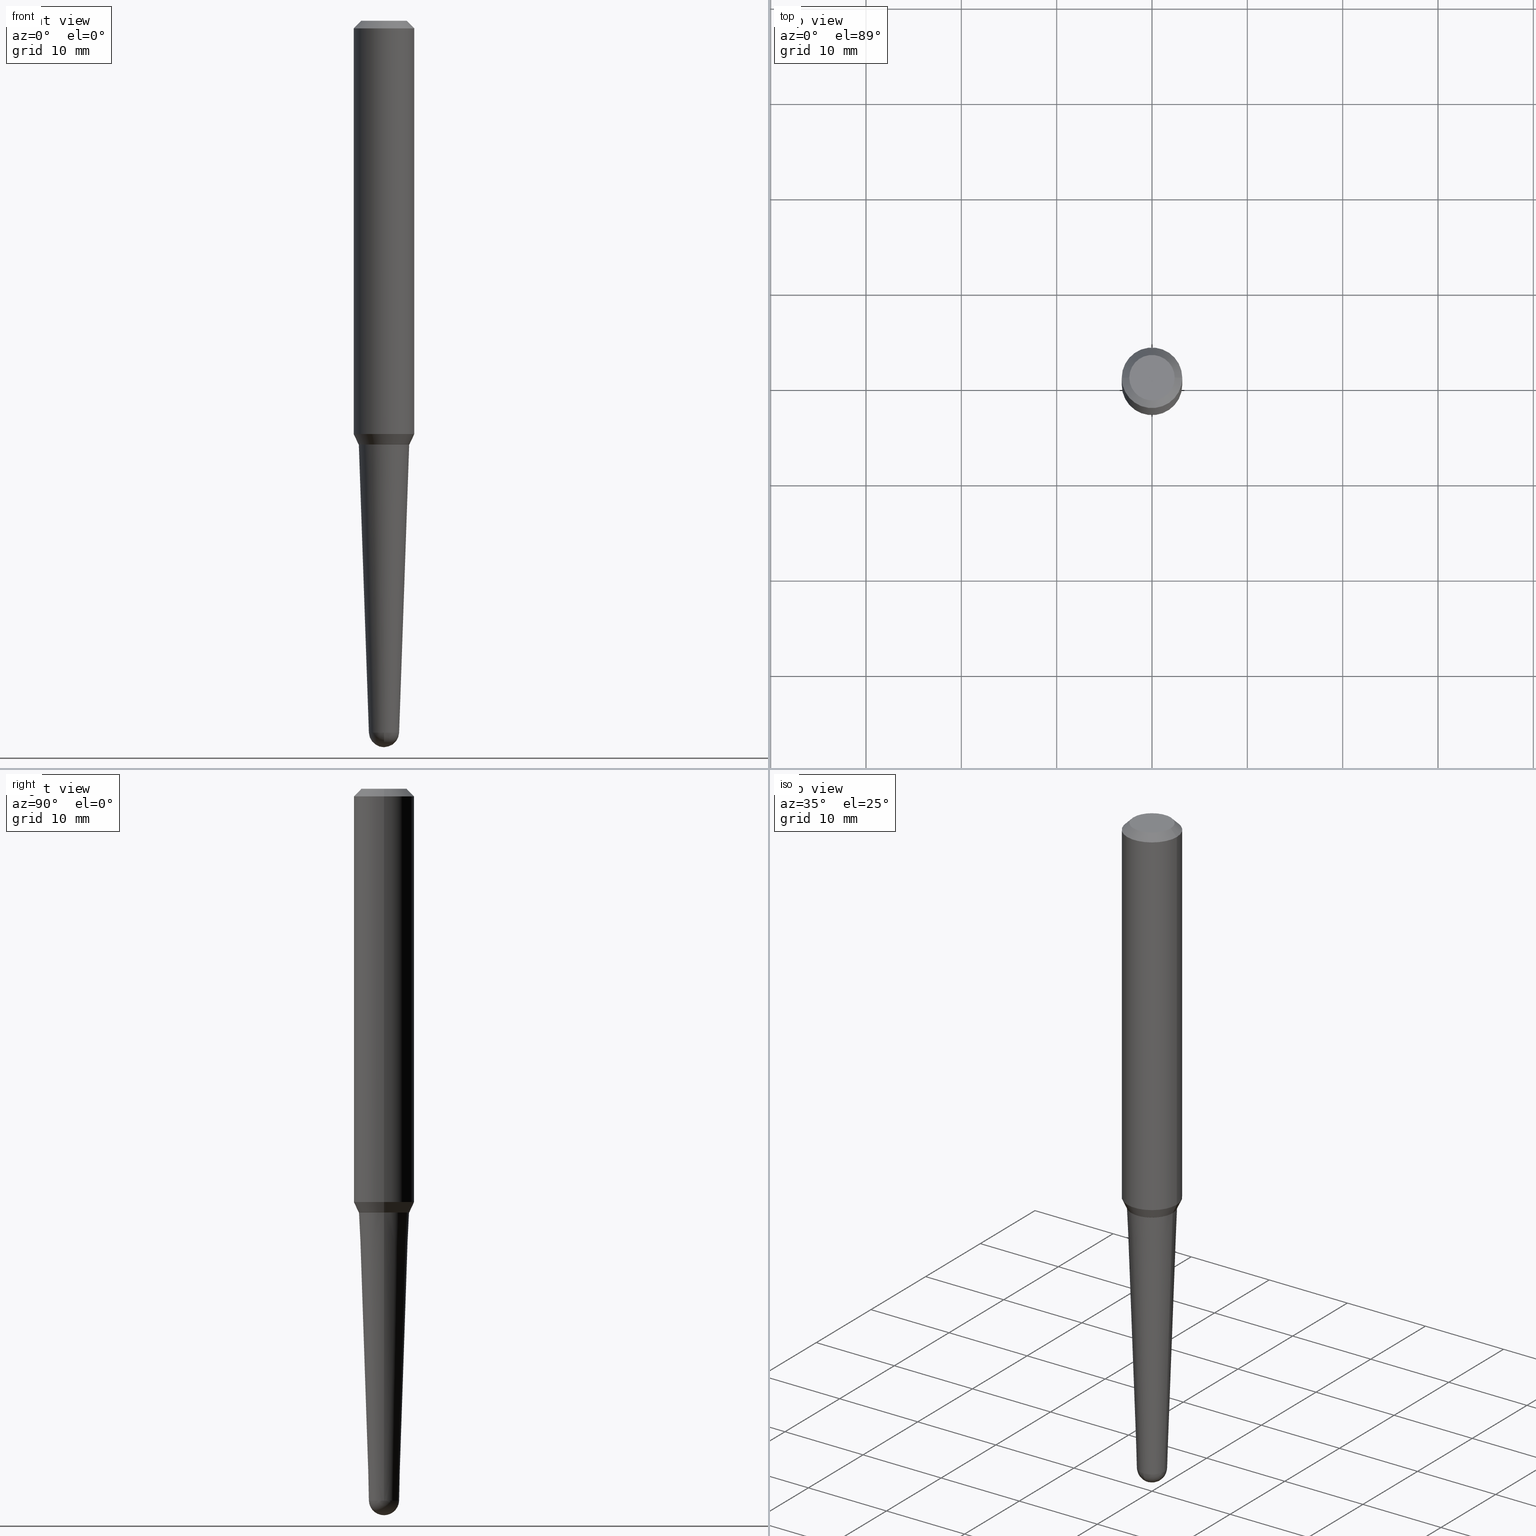
[diagram: canonical four-view strip — front | top / right | iso, engineering-drawing reading convention]
A machine part, canonical four-view strip (front | top / right | iso — engineering-drawing reading convention). The complete STEP part file that produces these views, byte-faithful:
ISO-10303-21;
HEADER;
FILE_DESCRIPTION (( 'STEP AP203' ),
    '1' );
FILE_NAME ('32472.STEP',
    '2024-03-04T15:25:46',
    ( '' ),
    ( '' ),
    'SwSTEP 2.0',
    'SolidWorks 2023',
    '' );
FILE_SCHEMA (( 'CONFIG_CONTROL_DESIGN' ));
ENDSEC;

DATA;
#1 = ORIENTED_EDGE ( 'NONE', *, *, #341, .F. ) ;
#2 = AXIS2_PLACEMENT_3D ( 'NONE', #399, #81, #372 ) ;
#3 = CIRCLE ( 'NONE', #62, 0.06246192668869397779 ) ;
#4 = ORIENTED_EDGE ( 'NONE', *, *, #273, .F. ) ;
#5 = CALENDAR_DATE ( 2024, 4, 3 ) ;
#6 = FACE_OUTER_BOUND ( 'NONE', #197, .T. ) ;
#7 = SHAPE_DEFINITION_REPRESENTATION ( #462, #30 ) ;
#8 = CALENDAR_DATE ( 2024, 4, 3 ) ;
#9 = VECTOR ( 'NONE', #171, 39.37007874015748854 ) ;
#10 = CARTESIAN_POINT ( 'NONE',  ( -0.1250000000000000278, -2.145698591350394576E-15, -0.03125000000000004857 ) ) ;
#11 = EDGE_CURVE ( 'NONE', #127, #279, #433, .T. ) ;
#12 = ORIENTED_EDGE ( 'NONE', *, *, #448, .F. ) ;
#13 = DIRECTION ( 'NONE',  ( 1.000000000000000000, -6.982962677686267499E-15, 4.852736867747361723E-29 ) ) ;
#14 = PERSON_AND_ORGANIZATION_ROLE ( 'creator' ) ;
#15 = VERTEX_POINT ( 'NONE', #104 ) ;
#16 = AXIS2_PLACEMENT_3D ( 'NONE', #42, #289, #13 ) ;
#17 = AXIS2_PLACEMENT_3D ( 'NONE', #268, #420, #384 ) ;
#18 = DIRECTION ( 'NONE',  ( -0.7071067811866441621, 7.493145998870704414E-15, 0.7071067811864508723 ) ) ;
#19 = ORIENTED_EDGE ( 'NONE', *, *, #313, .T. ) ;
#20 = EDGE_CURVE ( 'NONE', #66, #447, #323, .T. ) ;
#21 = DIRECTION ( 'NONE',  ( -2.445468806185136597E-29, 3.491481338843145583E-15, 1.000000000000000000 ) ) ;
#22 = VERTEX_POINT ( 'NONE', #391 ) ;
#23 = CARTESIAN_POINT ( 'NONE',  ( -0.1045065102901272247, -5.367528925712624666E-15, -1.750000000000000222 ) ) ;
#24 = CARTESIAN_POINT ( 'NONE',  ( 0.1250000000000000278, -9.666710415602901515E-16, -0.03125000000000004857 ) ) ;
#25 = AXIS2_PLACEMENT_3D ( 'NONE', #196, #373, #54 ) ;
#26 = EDGE_LOOP ( 'NONE', ( #166, #400, #410, #160 ) ) ;
#27 = DIRECTION ( 'NONE',  ( 0.4226182617406871178, 2.132291770428470846E-16, 0.9063077870366557098 ) ) ;
#28 = ORIENTED_EDGE ( 'NONE', *, *, #426, .T. ) ;
#29 = ADVANCED_FACE ( 'NONE', ( #148 ), #349, .T. ) ;
#30 = ADVANCED_BREP_SHAPE_REPRESENTATION ( '32472', ( #302, #141, #38 ), #146 ) ;
#31 = ORIENTED_EDGE ( 'NONE', *, *, #263, .T. ) ;
#32 = AXIS2_PLACEMENT_3D ( 'NONE', #222, #411, #218 ) ;
#33 = CC_DESIGN_SECURITY_CLASSIFICATION ( #232, ( #424 ) ) ;
#34 = ADVANCED_FACE ( 'NONE', ( #315 ), #199, .T. ) ;
#35 = CARTESIAN_POINT ( 'NONE',  ( 7.520286344533223702E-29, -9.774021755687468506E-15, -2.937500000000000000 ) ) ;
#36 = DIRECTION ( 'NONE',  ( 1.000000000000000000, -6.982962677686269077E-15, 0.000000000000000000 ) ) ;
#37 = ORIENTED_EDGE ( 'NONE', *, *, #140, .T. ) ;
#38 = AXIS2_PLACEMENT_3D ( 'NONE', #223, #195, #328 ) ;
#39 = PERSON_AND_ORGANIZATION ( #284, #162 ) ;
#40 = FACE_OUTER_BOUND ( 'NONE', #135, .T. ) ;
#41 = DATE_AND_TIME ( #367, #75 ) ;
#42 = CARTESIAN_POINT ( 'NONE',  ( -1.450455682483482035E-44, 2.070866303999251778E-30, 5.931196827434296760E-16 ) ) ;
#43 = ORIENTED_EDGE ( 'NONE', *, *, #103, .T. ) ;
#44 = DATE_AND_TIME ( #185, #338 ) ;
#45 = CARTESIAN_POINT ( 'NONE',  ( 4.278347676420897364E-29, -6.108346602306083956E-15, -1.749500000000000277 ) ) ;
#46 = CLOSED_SHELL ( 'NONE', ( #434, #187, #117, #189, #278 ) ) ;
#47 = APPROVAL_ROLE ( '' ) ;
#48 = FACE_OUTER_BOUND ( 'NONE', #164, .T. ) ;
#49 = ORIENTED_EDGE ( 'NONE', *, *, #359, .F. ) ;
#50 =( NAMED_UNIT ( * ) PLANE_ANGLE_UNIT ( ) SI_UNIT ( $, .RADIAN. ) );
#51 = CARTESIAN_POINT ( 'NONE',  ( 0.1050065102901272529, -6.841603144576121377E-15, -1.749500000000000277 ) ) ;
#52 = CONICAL_SURFACE ( 'NONE', #265, 0.1050065102901272529, 0.4363323129985687832 ) ;
#53 = CONICAL_SURFACE ( 'NONE', #332, 0.1050065102901272529, 0.4363323129985687832 ) ;
#54 = DIRECTION ( 'NONE',  ( 1.000000000000000000, -6.982962677686267499E-15, 0.000000000000000000 ) ) ;
#55 = ORIENTED_EDGE ( 'NONE', *, *, #20, .T. ) ;
#56 = CARTESIAN_POINT ( 'NONE',  ( -0.1050065102901272529, -5.362230471364402264E-15, -1.749500000000000277 ) ) ;
#57 = ADVANCED_FACE ( 'NONE', ( #353 ), #52, .T. ) ;
#58 = EDGE_CURVE ( 'NONE', #22, #421, #83, .T. ) ;
#59 = CARTESIAN_POINT ( 'NONE',  ( 0.1250000000000001943, -6.831515564972979377E-15, -1.706623822952039626 ) ) ;
#60 = CARTESIAN_POINT ( 'NONE',  ( 4.279570410823989044E-29, -6.110092342975505460E-15, -1.750000000000000222 ) ) ;
#61 = AXIS2_PLACEMENT_3D ( 'NONE', #188, #287, #368 ) ;
#62 = AXIS2_PLACEMENT_3D ( 'NONE', #238, #245, #319 ) ;
#63 = DIRECTION ( 'NONE',  ( 1.000000000000000000, -6.982962677686267499E-15, 0.000000000000000000 ) ) ;
#64 = ORIENTED_EDGE ( 'NONE', *, *, #299, .F. ) ;
#65 = CC_DESIGN_PERSON_AND_ORGANIZATION_ASSIGNMENT ( #39, #186, ( #424 ) ) ;
#66 = VERTEX_POINT ( 'NONE', #456 ) ;
#67 = CARTESIAN_POINT ( 'NONE',  ( 4.279570410823989044E-29, -6.110092342975505460E-15, -1.750000000000000222 ) ) ;
#68 = AXIS2_PLACEMENT_3D ( 'NONE', #392, #275, #105 ) ;
#69 = DIRECTION ( 'NONE',  ( -2.445468806185136597E-29, 3.491481338843145583E-15, 1.000000000000000000 ) ) ;
#70 = DIRECTION ( 'NONE',  ( 1.000000000000000000, -6.982962677686267499E-15, 0.000000000000000000 ) ) ;
#71 = EDGE_CURVE ( 'NONE', #15, #447, #182, .T. ) ;
#72 = FACE_OUTER_BOUND ( 'NONE', #230, .T. ) ;
#73 = DIRECTION ( 'NONE',  ( 1.000000000000000000, -6.982962677686261977E-15, 0.000000000000000000 ) ) ;
#74 = CIRCLE ( 'NONE', #128, 0.1045065102901272247 ) ;
#75 = LOCAL_TIME ( 10, 25, 46.00000000000000000, #76 ) ;
#76 = COORDINATED_UNIVERSAL_TIME_OFFSET ( 5, 0, .BEHIND. ) ;
#77 = DIRECTION ( 'NONE',  ( -2.445468806185136597E-29, 3.491481338843145583E-15, 1.000000000000000000 ) ) ;
#78 =( CONVERSION_BASED_UNIT ( 'INCH', #86 ) LENGTH_UNIT ( ) NAMED_UNIT ( #88 ) );
#79 = ADVANCED_FACE ( 'NONE', ( #72 ), #210, .F. ) ;
#80 = CARTESIAN_POINT ( 'NONE',  ( 4.279570410823989044E-29, -6.110092342975505460E-15, -1.750000000000000222 ) ) ;
#81 = DIRECTION ( 'NONE',  ( -2.445468806185136597E-29, 3.491481338843145583E-15, 1.000000000000000000 ) ) ;
#82 = VECTOR ( 'NONE', #233, 39.37007874015748143 ) ;
#83 = CIRCLE ( 'NONE', #405, 0.1040065102901272243 ) ;
#84 = DIRECTION ( 'NONE',  ( -1.000000000000000000, 6.982962677686265922E-15, -4.883557194083112340E-29 ) ) ;
#85 = ORIENTED_EDGE ( 'NONE', *, *, #11, .F. ) ;
#86 = LENGTH_MEASURE_WITH_UNIT ( LENGTH_MEASURE( 0.02539999999999999897 ), #314 );
#87 = DIRECTION ( 'NONE',  ( -2.445468806185136597E-29, 3.491481338843145583E-15, 1.000000000000000000 ) ) ;
#88 = DIMENSIONAL_EXPONENTS ( 1.000000000000000000, 0.000000000000000000, 0.000000000000000000, 0.000000000000000000, 0.000000000000000000, 0.000000000000000000, 0.000000000000000000 ) ;
#89 = CARTESIAN_POINT ( 'NONE',  ( -0.1250000000000000278, 7.637615428719351256E-16, -0.03125000000000004857 ) ) ;
#90 = ORIENTED_EDGE ( 'NONE', *, *, #461, .F. ) ;
#91 = AXIS2_PLACEMENT_3D ( 'NONE', #45, #77, #191 ) ;
#92 = DIRECTION ( 'NONE',  ( -1.000000000000000000, 6.982962677686265922E-15, -4.876176775795935793E-29 ) ) ;
#93 = EDGE_CURVE ( 'NONE', #15, #357, #114, .T. ) ;
#94 = ORIENTED_EDGE ( 'NONE', *, *, #93, .T. ) ;
#95 = DIRECTION ( 'NONE',  ( 2.438088387897960049E-29, -3.491481338843145188E-15, -1.000000000000000000 ) ) ;
#96 = ORIENTED_EDGE ( 'NONE', *, *, #252, .F. ) ;
#97 = DIRECTION ( 'NONE',  ( 1.000000000000000000, -6.982962677686267499E-15, 4.852736867747361723E-29 ) ) ;
#98 = ORIENTED_EDGE ( 'NONE', *, *, #261, .T. ) ;
#99 = FACE_OUTER_BOUND ( 'NONE', #100, .T. ) ;
#100 = EDGE_LOOP ( 'NONE', ( #336, #428, #387, #294, #55 ) ) ;
#101 = CC_DESIGN_DATE_AND_TIME_ASSIGNMENT ( #156, #158, ( #444 ) ) ;
#102 = ORIENTED_EDGE ( 'NONE', *, *, #448, .T. ) ;
#103 = EDGE_CURVE ( 'NONE', #66, #22, #322, .T. ) ;
#104 = CARTESIAN_POINT ( 'NONE',  ( 7.675800539573479979E-29, -9.988412318117830445E-15, -2.999999999999999556 ) ) ;
#105 = DIRECTION ( 'NONE',  ( 1.000000000000000000, -6.982962677686261977E-15, 0.000000000000000000 ) ) ;
#106 = EDGE_LOOP ( 'NONE', ( #283, #320, #412, #43, #312 ) ) ;
#107 = AXIS2_PLACEMENT_3D ( 'NONE', #212, #181, #425 ) ;
#108 = APPROVAL_PERSON_ORGANIZATION ( #394, #345, #220 ) ;
#109 = CARTESIAN_POINT ( 'NONE',  ( 7.188898720077434965E-29, -1.026384211669372732E-14, -2.939681218543906294 ) ) ;
#110 = DIRECTION ( 'NONE',  ( 2.445468806185136597E-29, -3.491481338843145583E-15, -1.000000000000000000 ) ) ;
#111 = EDGE_CURVE ( 'NONE', #348, #421, #180, .T. ) ;
#112 = SPHERICAL_SURFACE ( 'NONE', #298, 0.06249999999999984041 ) ;
#113 = VERTEX_POINT ( 'NONE', #10 ) ;
#114 = CIRCLE ( 'NONE', #107, 0.06249999999999984041 ) ;
#115 = CONICAL_SURFACE ( 'NONE', #68, 0.06246192668869397779, 0.03490658503988653544 ) ;
#116 = FACE_OUTER_BOUND ( 'NONE', #423, .T. ) ;
#117 = ADVANCED_FACE ( 'NONE', ( #366 ), #112, .T. ) ;
#118 = ORIENTED_EDGE ( 'NONE', *, *, #93, .F. ) ;
#119 = AXIS2_PLACEMENT_3D ( 'NONE', #396, #137, #276 ) ;
#120 = CIRCLE ( 'NONE', #219, 0.1250000000000001943 ) ;
#121 = APPROVAL_DATE_TIME ( #41, #228 ) ;
#122 = ORIENTED_EDGE ( 'NONE', *, *, #71, .F. ) ;
#123 = ORIENTED_EDGE ( 'NONE', *, *, #20, .F. ) ;
#124 = CARTESIAN_POINT ( 'NONE',  ( -0.09375000000000006939, 7.092071469525110684E-16, -2.985923209265061018E-16 ) ) ;
#125 = ORIENTED_EDGE ( 'NONE', *, *, #168, .T. ) ;
#126 = LINE ( 'NONE', #51, #429 ) ;
#127 = VERTEX_POINT ( 'NONE', #401 ) ;
#128 = AXIS2_PLACEMENT_3D ( 'NONE', #80, #150, #159 ) ;
#129 = CIRCLE ( 'NONE', #243, 0.1045065102901272247 ) ;
#130 = FACE_OUTER_BOUND ( 'NONE', #239, .T. ) ;
#131 = PRODUCT ( '32472', '32472', '', ( #286 ) ) ;
#132 = DIRECTION ( 'NONE',  ( -0.7071067811865497932, 2.468850131082280332E-15, -0.7071067811865451302 ) ) ;
#133 = ORIENTED_EDGE ( 'NONE', *, *, #157, .F. ) ;
#134 = CARTESIAN_POINT ( 'NONE',  ( -0.1045065102901272247, -5.364879698538513465E-15, -1.750000000000000222 ) ) ;
#135 = EDGE_LOOP ( 'NONE', ( #122, #94, #90, #376 ) ) ;
#136 = AXIS2_PLACEMENT_3D ( 'NONE', #324, #356, #280 ) ;
#137 = DIRECTION ( 'NONE',  ( 2.438088387897960049E-29, -3.491481338843145188E-15, -1.000000000000000000 ) ) ;
#138 = EDGE_LOOP ( 'NONE', ( #161, #326, #344, #96 ) ) ;
#139 = CARTESIAN_POINT ( 'NONE',  ( 4.361693028435970673E-16, 0.06246192668868363190, -2.939681218543906294 ) ) ;
#140 = EDGE_CURVE ( 'NONE', #152, #113, #225, .T. ) ;
#141 = MANIFOLD_SOLID_BREP ( 'Body-Move/Copy2[2]', #288 ) ;
#142 = DIRECTION ( 'NONE',  ( -0.03489949670250091368, 3.737330261384646804E-15, 0.9993908270190957621 ) ) ;
#143 = CARTESIAN_POINT ( 'NONE',  ( -0.1040065102901272243, -5.371081639391425565E-15, -1.750000000000000222 ) ) ;
#144 = AXIS2_PLACEMENT_3D ( 'NONE', #109, #240, #73 ) ;
#145 = DIRECTION ( 'NONE',  ( 0.7071067811866441621, -2.468850131083269169E-15, 0.7071067811864508723 ) ) ;
#146 =( GEOMETRIC_REPRESENTATION_CONTEXT ( 3 ) GLOBAL_UNCERTAINTY_ASSIGNED_CONTEXT ( ( #436 ) ) GLOBAL_UNIT_ASSIGNED_CONTEXT ( ( #78, #50, #404 ) ) REPRESENTATION_CONTEXT ( 'NONE', 'WORKASPACE' ) );
#147 = CIRCLE ( 'NONE', #325, 0.06246192668869397779 ) ;
#148 = FACE_OUTER_BOUND ( 'NONE', #403, .T. ) ;
#149 = APPROVAL_DATE_TIME ( #44, #345 ) ;
#150 = DIRECTION ( 'NONE',  ( -2.445468806185136597E-29, 3.491481338843145583E-15, 1.000000000000000000 ) ) ;
#151 = CC_DESIGN_PERSON_AND_ORGANIZATION_ASSIGNMENT ( #155, #258, ( #424 ) ) ;
#152 = VERTEX_POINT ( 'NONE', #442 ) ;
#153 = ADVANCED_FACE ( 'NONE', ( #6 ), #296, .T. ) ;
#154 = VECTOR ( 'NONE', #132, 39.37007874015748854 ) ;
#155 = PERSON_AND_ORGANIZATION ( #284, #162 ) ;
#156 = DATE_AND_TIME ( #8, #317 ) ;
#157 = EDGE_CURVE ( 'NONE', #127, #237, #74, .T. ) ;
#158 = DATE_TIME_ROLE ( 'creation_date' ) ;
#159 = DIRECTION ( 'NONE',  ( 1.000000000000000000, -6.982962677686265133E-15, 0.000000000000000000 ) ) ;
#160 = ORIENTED_EDGE ( 'NONE', *, *, #202, .F. ) ;
#161 = ORIENTED_EDGE ( 'NONE', *, *, #329, .F. ) ;
#162 = ORGANIZATION ( 'UNSPECIFIED', 'UNSPECIFIED', '' ) ;
#163 = CARTESIAN_POINT ( 'NONE',  ( 4.279570410823989044E-29, -6.110092342975505460E-15, -1.750000000000000222 ) ) ;
#164 = EDGE_LOOP ( 'NONE', ( #133, #1 ) ) ;
#165 = DIRECTION ( 'NONE',  ( 1.000000000000000000, -6.982962677686261977E-15, 0.000000000000000000 ) ) ;
#166 = ORIENTED_EDGE ( 'NONE', *, *, #313, .F. ) ;
#167 = DIRECTION ( 'NONE',  ( -2.445468806185136597E-29, 3.491481338843145583E-15, 1.000000000000000000 ) ) ;
#168 = EDGE_CURVE ( 'NONE', #260, #380, #437, .T. ) ;
#169 = CONICAL_SURFACE ( 'NONE', #2, 0.06246192668869397779, 0.03490658503988653544 ) ;
#170 = CIRCLE ( 'NONE', #257, 0.1050065102901272529 ) ;
#171 = DIRECTION ( 'NONE',  ( 0.7071067811865497932, -7.319954787623263934E-15, -0.7071067811865451302 ) ) ;
#172 = CARTESIAN_POINT ( 'NONE',  ( -0.1050065102901272529, -5.362230471364402264E-15, -1.749500000000000277 ) ) ;
#173 = EDGE_LOOP ( 'NONE', ( #334, #408, #12, #363 ) ) ;
#174 = ORIENTED_EDGE ( 'NONE', *, *, #58, .T. ) ;
#175 = DIRECTION ( 'NONE',  ( -2.445468806185136597E-29, 3.491481338843145583E-15, 1.000000000000000000 ) ) ;
#176 = VECTOR ( 'NONE', #142, 39.37007874015748143 ) ;
#177 = CIRCLE ( 'NONE', #136, 0.1250000000000000278 ) ;
#178 = DIRECTION ( 'NONE',  ( -2.445468806185136597E-29, 3.491481338843145583E-15, 1.000000000000000000 ) ) ;
#179 = ADVANCED_FACE ( 'NONE', ( #116 ), #231, .T. ) ;
#180 = LINE ( 'NONE', #460, #176 ) ;
#181 = DIRECTION ( 'NONE',  ( -1.000000000000000000, 7.105427357601001070E-15, -4.926315508542082329E-29 ) ) ;
#182 = CIRCLE ( 'NONE', #385, 0.06249999999999984041 ) ;
#183 = ORIENTED_EDGE ( 'NONE', *, *, #389, .T. ) ;
#184 = CONICAL_SURFACE ( 'NONE', #206, 0.1045065102901272247, 0.7853981633975849475 ) ;
#185 = CALENDAR_DATE ( 2024, 4, 3 ) ;
#186 = PERSON_AND_ORGANIZATION_ROLE ( 'design_supplier' ) ;
#187 = ADVANCED_FACE ( 'NONE', ( #40 ), #370, .T. ) ;
#188 = CARTESIAN_POINT ( 'NONE',  ( 7.520286344533223702E-29, -9.774021755687468506E-15, -2.937500000000000000 ) ) ;
#189 = ADVANCED_FACE ( 'NONE', ( #249 ), #169, .T. ) ;
#190 = DESIGN_CONTEXT ( 'detailed design', #458, 'design' ) ;
#191 = DIRECTION ( 'NONE',  ( 1.000000000000000000, -6.982962677686267499E-15, 0.000000000000000000 ) ) ;
#192 = AXIS2_PLACEMENT_3D ( 'NONE', #60, #95, #92 ) ;
#193 = DATE_AND_TIME ( #5, #398 ) ;
#194 = DIRECTION ( 'NONE',  ( 6.982962677686265922E-15, 1.000000000000000000, 0.000000000000000000 ) ) ;
#195 = DIRECTION ( 'NONE',  ( 0.000000000000000000, 0.000000000000000000, 1.000000000000000000 ) ) ;
#196 = CARTESIAN_POINT ( 'NONE',  ( 4.173495322921638284E-29, -5.958645230262194461E-15, -1.706623822952039626 ) ) ;
#197 = EDGE_LOOP ( 'NONE', ( #102, #37, #301, #198 ) ) ;
#198 = ORIENTED_EDGE ( 'NONE', *, *, #389, .F. ) ;
#199 = CONICAL_SURFACE ( 'NONE', #307, 0.1045065102901272247, 0.7853981633975849475 ) ;
#200 = APPROVAL_PERSON_ORGANIZATION ( #397, #316, #47 ) ;
#201 = LINE ( 'NONE', #89, #154 ) ;
#202 = EDGE_CURVE ( 'NONE', #297, #279, #337, .T. ) ;
#203 = CARTESIAN_POINT ( 'NONE',  ( 0.1050065102901272529, -6.841603144576121377E-15, -1.749500000000000277 ) ) ;
#204 = CARTESIAN_POINT ( 'NONE',  ( 4.279570410823989044E-29, -6.110092342975505460E-15, -1.750000000000000222 ) ) ;
#205 = AXIS2_PLACEMENT_3D ( 'NONE', #440, #259, #407 ) ;
#206 = AXIS2_PLACEMENT_3D ( 'NONE', #270, #175, #422 ) ;
#207 = LINE ( 'NONE', #351, #282 ) ;
#208 = EDGE_LOOP ( 'NONE', ( #383, #19, #417, #85 ) ) ;
#209 = ADVANCED_FACE ( 'NONE', ( #48 ), #374, .F. ) ;
#210 = PLANE ( 'NONE',  #119 ) ;
#211 = CIRCLE ( 'NONE', #331, 0.1250000000000000278 ) ;
#212 = CARTESIAN_POINT ( 'NONE',  ( 7.520286344533223702E-29, -9.774021755687468506E-15, -2.937500000000000000 ) ) ;
#213 = CC_DESIGN_DATE_AND_TIME_ASSIGNMENT ( #269, #414, ( #232 ) ) ;
#214 = DIRECTION ( 'NONE',  ( 1.000000000000000000, -6.982962677686267499E-15, 0.000000000000000000 ) ) ;
#215 = CARTESIAN_POINT ( 'NONE',  ( 4.278347676420897364E-29, -6.108346602306083956E-15, -1.749500000000000277 ) ) ;
#216 = CARTESIAN_POINT ( 'NONE',  ( 4.278347676420897364E-29, -6.108346602306083956E-15, -1.749500000000000277 ) ) ;
#217 = APPROVAL_STATUS ( 'not_yet_approved' ) ;
#218 = DIRECTION ( 'NONE',  ( -1.000000000000000000, 6.982962677686267499E-15, 0.000000000000000000 ) ) ;
#219 = AXIS2_PLACEMENT_3D ( 'NONE', #241, #431, #70 ) ;
#220 = APPROVAL_ROLE ( '' ) ;
#221 = DIRECTION ( 'NONE',  ( -2.445468806185136877E-29, 3.491481338843145188E-15, 1.000000000000000000 ) ) ;
#222 = CARTESIAN_POINT ( 'NONE',  ( 7.642090019328562375E-31, -1.091087918388484597E-16, -0.03125000000000004857 ) ) ;
#223 = CARTESIAN_POINT ( 'NONE',  ( 0.000000000000000000, 0.000000000000000000, 0.000000000000000000 ) ) ;
#224 = CIRCLE ( 'NONE', #25, 0.1250000000000001943 ) ;
#225 = LINE ( 'NONE', #292, #364 ) ;
#226 = VERTEX_POINT ( 'NONE', #236 ) ;
#227 = CARTESIAN_POINT ( 'NONE',  ( 7.642090019328562375E-31, -1.091087918388484597E-16, -0.03125000000000004857 ) ) ;
#228 = APPROVAL ( #446, 'UNSPECIFIED' ) ;
#229 = DIRECTION ( 'NONE',  ( -2.438088387897960049E-29, 3.491481338843145188E-15, 1.000000000000000000 ) ) ;
#230 = EDGE_LOOP ( 'NONE', ( #125, #31 ) ) ;
#231 = CONICAL_SURFACE ( 'NONE', #32, 0.1250000000000000278, 0.7853981633974516097 ) ;
#232 = SECURITY_CLASSIFICATION ( '', '', #327 ) ;
#233 = DIRECTION ( 'NONE',  ( -0.4226182617406871178, 6.167240084480770558E-15, 0.9063077870366557098 ) ) ;
#234 = LINE ( 'NONE', #172, #82 ) ;
#235 = EDGE_CURVE ( 'NONE', #279, #352, #126, .T. ) ;
#236 = CARTESIAN_POINT ( 'NONE',  ( 0.1250000000000000278, -9.819791265496320450E-16, -0.03125000000000004857 ) ) ;
#237 = VERTEX_POINT ( 'NONE', #134 ) ;
#238 = CARTESIAN_POINT ( 'NONE',  ( 7.188898720077434965E-29, -1.026384211669372732E-14, -2.939681218543906294 ) ) ;
#239 = EDGE_LOOP ( 'NONE', ( #174, #309 ) ) ;
#240 = DIRECTION ( 'NONE',  ( -2.445468806185136597E-29, 3.491481338843145583E-15, 1.000000000000000000 ) ) ;
#241 = CARTESIAN_POINT ( 'NONE',  ( 4.173495322921638284E-29, -5.958645230262194461E-15, -1.706623822952039626 ) ) ;
#242 = AXIS2_PLACEMENT_3D ( 'NONE', #451, #454, #165 ) ;
#243 = AXIS2_PLACEMENT_3D ( 'NONE', #163, #21, #300 ) ;
#244 = CARTESIAN_POINT ( 'NONE',  ( 0.1045065102901272247, -6.839857403906699084E-15, -1.750000000000000222 ) ) ;
#245 = DIRECTION ( 'NONE',  ( -2.445468806185136597E-29, 3.491481338843145583E-15, 1.000000000000000000 ) ) ;
#246 = CARTESIAN_POINT ( 'NONE',  ( 4.279570410823989044E-29, -6.110092342975505460E-15, -1.750000000000000222 ) ) ;
#247 = DIRECTION ( 'NONE',  ( 1.000000000000000000, -6.982962677686265922E-15, 4.883557194083112340E-29 ) ) ;
#248 = VECTOR ( 'NONE', #145, 39.37007874015748143 ) ;
#249 = FACE_OUTER_BOUND ( 'NONE', #106, .T. ) ;
#250 = ORIENTED_EDGE ( 'NONE', *, *, #71, .T. ) ;
#251 = APPROVAL_ROLE ( '' ) ;
#252 = EDGE_CURVE ( 'NONE', #152, #352, #224, .T. ) ;
#253 = PRODUCT_RELATED_PRODUCT_CATEGORY ( 'detail', '', ( #131 ) ) ;
#254 = PERSON_AND_ORGANIZATION_ROLE ( 'design_owner' ) ;
#255 = ORIENTED_EDGE ( 'NONE', *, *, #359, .T. ) ;
#256 = AXIS2_PLACEMENT_3D ( 'NONE', #264, #378, #262 ) ;
#257 = AXIS2_PLACEMENT_3D ( 'NONE', #382, #167, #306 ) ;
#258 = PERSON_AND_ORGANIZATION_ROLE ( 'creator' ) ;
#259 = DIRECTION ( 'NONE',  ( -2.445468806185136597E-29, 3.491481338843145583E-15, 1.000000000000000000 ) ) ;
#260 = VERTEX_POINT ( 'NONE', #124 ) ;
#261 = EDGE_CURVE ( 'NONE', #260, #113, #201, .T. ) ;
#262 = DIRECTION ( 'NONE',  ( 1.000000000000000000, -6.982962677686266711E-15, 4.852736867747362844E-29 ) ) ;
#263 = EDGE_CURVE ( 'NONE', #380, #260, #416, .T. ) ;
#264 = CARTESIAN_POINT ( 'NONE',  ( 7.301982065921803301E-45, -1.042529516436742983E-30, -2.985923209265013193E-16 ) ) ;
#265 = AXIS2_PLACEMENT_3D ( 'NONE', #216, #178, #214 ) ;
#266 = CC_DESIGN_APPROVAL ( #316, ( #444 ) ) ;
#267 = CARTESIAN_POINT ( 'NONE',  ( -1.450455682483482035E-44, 2.070866303999251778E-30, 5.931196827434296760E-16 ) ) ;
#268 = CARTESIAN_POINT ( 'NONE',  ( 4.279570410823989044E-29, -6.110092342975505460E-15, -1.750000000000000222 ) ) ;
#269 = DATE_AND_TIME ( #303, #409 ) ;
#270 = CARTESIAN_POINT ( 'NONE',  ( 4.279570410823989044E-29, -6.110092342975505460E-15, -1.750000000000000222 ) ) ;
#271 = ORIENTED_EDGE ( 'NONE', *, *, #252, .T. ) ;
#272 = AXIS2_PLACEMENT_3D ( 'NONE', #277, #110, #360 ) ;
#273 = EDGE_CURVE ( 'NONE', #113, #226, #211, .T. ) ;
#274 = APPROVAL_PERSON_ORGANIZATION ( #295, #228, #251 ) ;
#275 = DIRECTION ( 'NONE',  ( -2.445468806185136597E-29, 3.491481338843145583E-15, 1.000000000000000000 ) ) ;
#276 = DIRECTION ( 'NONE',  ( -1.000000000000000000, 6.982962677686265922E-15, -4.876176775795935793E-29 ) ) ;
#277 = CARTESIAN_POINT ( 'NONE',  ( 7.642090019328562375E-31, -1.091087918388484597E-16, -0.03125000000000004857 ) ) ;
#278 = ADVANCED_FACE ( 'NONE', ( #130 ), #335, .F. ) ;
#279 = VERTEX_POINT ( 'NONE', #203 ) ;
#280 = DIRECTION ( 'NONE',  ( 1.000000000000000000, -6.982962677686267499E-15, 0.000000000000000000 ) ) ;
#281 = VECTOR ( 'NONE', #18, 39.37007874015748143 ) ;
#282 = VECTOR ( 'NONE', #311, 39.37007874015748143 ) ;
#283 = ORIENTED_EDGE ( 'NONE', *, *, #111, .F. ) ;
#284 = PERSON ( 'UNSPECIFIED', 'UNSPECIFIED', 'UNSPECIFIED', ('UNSPECIFIED'), ('UNSPECIFIED'), ('UNSPECIFIED') ) ;
#285 = ORIENTED_EDGE ( 'NONE', *, *, #273, .T. ) ;
#286 = MECHANICAL_CONTEXT ( 'NONE', #305, 'mechanical' ) ;
#287 = DIRECTION ( 'NONE',  ( -1.000000000000000000, 6.982962677686265922E-15, -4.883557194083112340E-29 ) ) ;
#288 = CLOSED_SHELL ( 'NONE', ( #179, #153, #57, #34, #209, #395, #457, #358, #29, #79 ) ) ;
#289 = DIRECTION ( 'NONE',  ( -2.445468806185136597E-29, 3.491481338843145583E-15, 1.000000000000000000 ) ) ;
#290 = CC_DESIGN_PERSON_AND_ORGANIZATION_ASSIGNMENT ( #350, #346, ( #232 ) ) ;
#291 = COORDINATED_UNIVERSAL_TIME_OFFSET ( 5, 0, .BEHIND. ) ;
#292 = CARTESIAN_POINT ( 'NONE',  ( -0.1250000000000001110, 8.881784197001281906E-16, 5.931196827434234637E-16 ) ) ;
#293 = CARTESIAN_POINT ( 'NONE',  ( 7.520286344533223702E-29, -9.774021755687468506E-15, -2.937500000000000000 ) ) ;
#294 = ORIENTED_EDGE ( 'NONE', *, *, #103, .F. ) ;
#295 = PERSON_AND_ORGANIZATION ( #284, #162 ) ;
#296 = CYLINDRICAL_SURFACE ( 'NONE', #16, 0.1250000000000001110 ) ;
#297 = VERTEX_POINT ( 'NONE', #56 ) ;
#298 = AXIS2_PLACEMENT_3D ( 'NONE', #293, #84, #194 ) ;
#299 = EDGE_CURVE ( 'NONE', #357, #66, #453, .T. ) ;
#300 = DIRECTION ( 'NONE',  ( 1.000000000000000000, -6.982962677686265133E-15, 0.000000000000000000 ) ) ;
#301 = ORIENTED_EDGE ( 'NONE', *, *, #426, .F. ) ;
#302 = MANIFOLD_SOLID_BREP ( 'Body-Move/Copy2[1]', #46 ) ;
#303 = CALENDAR_DATE ( 2024, 4, 3 ) ;
#304 = FACE_OUTER_BOUND ( 'NONE', #388, .T. ) ;
#305 = APPLICATION_CONTEXT ( 'configuration controlled 3d designs of mechanical parts and assemblies' ) ;
#306 = DIRECTION ( 'NONE',  ( 1.000000000000000000, -6.982962677686267499E-15, 0.000000000000000000 ) ) ;
#307 = AXIS2_PLACEMENT_3D ( 'NONE', #67, #69, #432 ) ;
#308 = CARTESIAN_POINT ( 'NONE',  ( 0.09375000000000006939, -8.049213644256865052E-16, -2.985923209264961917E-16 ) ) ;
#309 = ORIENTED_EDGE ( 'NONE', *, *, #381, .T. ) ;
#310 = COORDINATED_UNIVERSAL_TIME_OFFSET ( 5, 0, .BEHIND. ) ;
#311 = DIRECTION ( 'NONE',  ( -2.445468806185136877E-29, 3.491481338843145188E-15, 1.000000000000000000 ) ) ;
#312 = ORIENTED_EDGE ( 'NONE', *, *, #381, .F. ) ;
#313 = EDGE_CURVE ( 'NONE', #237, #297, #343, .T. ) ;
#314 =( LENGTH_UNIT ( ) NAMED_UNIT ( * ) SI_UNIT ( $, .METRE. ) );
#315 = FACE_OUTER_BOUND ( 'NONE', #208, .T. ) ;
#316 = APPROVAL ( #365, 'UNSPECIFIED' ) ;
#317 = LOCAL_TIME ( 10, 25, 46.00000000000000000, #291 ) ;
#318 = DIRECTION ( 'NONE',  ( 6.982962677686265922E-15, 1.000000000000000000, 0.000000000000000000 ) ) ;
#319 = DIRECTION ( 'NONE',  ( 1.000000000000000000, -6.982962677686261977E-15, 0.000000000000000000 ) ) ;
#320 = ORIENTED_EDGE ( 'NONE', *, *, #461, .T. ) ;
#321 = DIRECTION ( 'NONE',  ( 1.000000000000000000, -6.982962677686261977E-15, 0.000000000000000000 ) ) ;
#322 = LINE ( 'NONE', #354, #375 ) ;
#323 = CIRCLE ( 'NONE', #144, 0.06246192668869397779 ) ;
#324 = CARTESIAN_POINT ( 'NONE',  ( 7.642090019328562375E-31, -1.091087918388484597E-16, -0.03125000000000004857 ) ) ;
#325 = AXIS2_PLACEMENT_3D ( 'NONE', #443, #430, #321 ) ;
#326 = ORIENTED_EDGE ( 'NONE', *, *, #202, .T. ) ;
#327 = SECURITY_CLASSIFICATION_LEVEL ( 'unclassified' ) ;
#328 = DIRECTION ( 'NONE',  ( 1.000000000000000000, 0.000000000000000000, 0.000000000000000000 ) ) ;
#329 = EDGE_CURVE ( 'NONE', #297, #152, #234, .T. ) ;
#330 = PERSON_AND_ORGANIZATION ( #284, #162 ) ;
#331 = AXIS2_PLACEMENT_3D ( 'NONE', #227, #87, #415 ) ;
#332 = AXIS2_PLACEMENT_3D ( 'NONE', #215, #362, #63 ) ;
#333 = COORDINATED_UNIVERSAL_TIME_OFFSET ( 5, 0, .BEHIND. ) ;
#334 = ORIENTED_EDGE ( 'NONE', *, *, #342, .T. ) ;
#335 = PLANE ( 'NONE',  #192 ) ;
#336 = ORIENTED_EDGE ( 'NONE', *, *, #441, .T. ) ;
#337 = CIRCLE ( 'NONE', #91, 0.1050065102901272529 ) ;
#338 = LOCAL_TIME ( 10, 25, 46.00000000000000000, #369 ) ;
#339 = DIRECTION ( 'NONE',  ( -2.445468806185136597E-29, 3.491481338843145583E-15, 1.000000000000000000 ) ) ;
#340 = ORIENTED_EDGE ( 'NONE', *, *, #263, .F. ) ;
#341 = EDGE_CURVE ( 'NONE', #237, #127, #129, .T. ) ;
#342 = EDGE_CURVE ( 'NONE', #279, #297, #170, .T. ) ;
#343 = LINE ( 'NONE', #23, #281 ) ;
#344 = ORIENTED_EDGE ( 'NONE', *, *, #235, .T. ) ;
#345 = APPROVAL ( #217, 'UNSPECIFIED' ) ;
#346 = PERSON_AND_ORGANIZATION_ROLE ( 'classification_officer' ) ;
#347 = LINE ( 'NONE', #24, #9 ) ;
#348 = VERTEX_POINT ( 'NONE', #452 ) ;
#349 = CONICAL_SURFACE ( 'NONE', #272, 0.1250000000000000278, 0.7853981633974516097 ) ;
#350 = PERSON_AND_ORGANIZATION ( #284, #162 ) ;
#351 = CARTESIAN_POINT ( 'NONE',  ( 0.1250000000000001110, -8.728703347107821555E-16, 5.931196827434357896E-16 ) ) ;
#352 = VERTEX_POINT ( 'NONE', #59 ) ;
#353 = FACE_OUTER_BOUND ( 'NONE', #173, .T. ) ;
#354 = CARTESIAN_POINT ( 'NONE',  ( 0.06246192668869397779, -1.070001141953725324E-14, -2.939681218543906294 ) ) ;
#355 = AXIS2_PLACEMENT_3D ( 'NONE', #204, #229, #418 ) ;
#356 = DIRECTION ( 'NONE',  ( -2.445468806185136597E-29, 3.491481338843145583E-15, 1.000000000000000000 ) ) ;
#357 = VERTEX_POINT ( 'NONE', #449 ) ;
#358 = ADVANCED_FACE ( 'NONE', ( #304 ), #413, .T. ) ;
#359 = EDGE_CURVE ( 'NONE', #380, #226, #347, .T. ) ;
#360 = DIRECTION ( 'NONE',  ( -1.000000000000000000, 6.982962677686267499E-15, 0.000000000000000000 ) ) ;
#361 = CC_DESIGN_PERSON_AND_ORGANIZATION_ASSIGNMENT ( #330, #14, ( #444 ) ) ;
#362 = DIRECTION ( 'NONE',  ( -2.445468806185136597E-29, 3.491481338843145583E-15, 1.000000000000000000 ) ) ;
#363 = ORIENTED_EDGE ( 'NONE', *, *, #235, .F. ) ;
#364 = VECTOR ( 'NONE', #221, 39.37007874015748143 ) ;
#365 = APPROVAL_STATUS ( 'not_yet_approved' ) ;
#366 = FACE_OUTER_BOUND ( 'NONE', #427, .T. ) ;
#367 = CALENDAR_DATE ( 2024, 4, 3 ) ;
#368 = DIRECTION ( 'NONE',  ( 6.982962677686265922E-15, 1.000000000000000000, 0.000000000000000000 ) ) ;
#369 = COORDINATED_UNIVERSAL_TIME_OFFSET ( 5, 0, .BEHIND. ) ;
#370 = SPHERICAL_SURFACE ( 'NONE', #61, 0.06249999999999984041 ) ;
#371 = APPLICATION_PROTOCOL_DEFINITION ( 'international standard', 'config_control_design', 1994, #305 ) ;
#372 = DIRECTION ( 'NONE',  ( 1.000000000000000000, -6.982962677686261977E-15, 0.000000000000000000 ) ) ;
#373 = DIRECTION ( 'NONE',  ( -2.445468806185136597E-29, 3.491481338843145583E-15, 1.000000000000000000 ) ) ;
#374 = PLANE ( 'NONE',  #355 ) ;
#375 = VECTOR ( 'NONE', #459, 39.37007874015748143 ) ;
#376 = ORIENTED_EDGE ( 'NONE', *, *, #441, .F. ) ;
#377 = CC_DESIGN_APPROVAL ( #228, ( #424 ) ) ;
#378 = DIRECTION ( 'NONE',  ( -2.445468806185136597E-29, 3.491481338843145583E-15, 1.000000000000000000 ) ) ;
#379 = CC_DESIGN_PERSON_AND_ORGANIZATION_ASSIGNMENT ( #435, #254, ( #131 ) ) ;
#380 = VERTEX_POINT ( 'NONE', #308 ) ;
#381 = EDGE_CURVE ( 'NONE', #421, #22, #439, .T. ) ;
#382 = CARTESIAN_POINT ( 'NONE',  ( 4.278347676420897364E-29, -6.108346602306083956E-15, -1.749500000000000277 ) ) ;
#383 = ORIENTED_EDGE ( 'NONE', *, *, #157, .T. ) ;
#384 = DIRECTION ( 'NONE',  ( 1.000000000000000000, -6.982962677686269077E-15, 0.000000000000000000 ) ) ;
#385 = AXIS2_PLACEMENT_3D ( 'NONE', #35, #247, #318 ) ;
#386 = FACE_OUTER_BOUND ( 'NONE', #138, .T. ) ;
#387 = ORIENTED_EDGE ( 'NONE', *, *, #58, .F. ) ;
#388 = EDGE_LOOP ( 'NONE', ( #445, #271, #183, #4 ) ) ;
#389 = EDGE_CURVE ( 'NONE', #352, #226, #207, .T. ) ;
#390 = CC_DESIGN_APPROVAL ( #345, ( #232 ) ) ;
#391 = CARTESIAN_POINT ( 'NONE',  ( 0.1040065102901272243, -6.836365922567855288E-15, -1.750000000000000222 ) ) ;
#392 = CARTESIAN_POINT ( 'NONE',  ( 7.188898720077434965E-29, -1.026384211669372732E-14, -2.939681218543906294 ) ) ;
#393 = DIRECTION ( 'NONE',  ( -2.445468806185136597E-29, 3.491481338843145583E-15, 1.000000000000000000 ) ) ;
#394 = PERSON_AND_ORGANIZATION ( #284, #162 ) ;
#395 = ADVANCED_FACE ( 'NONE', ( #455 ), #184, .T. ) ;
#396 = CARTESIAN_POINT ( 'NONE',  ( 3.650991032960901650E-45, -5.212647582183714915E-31, -1.492961604632506596E-16 ) ) ;
#397 = PERSON_AND_ORGANIZATION ( #284, #162 ) ;
#398 = LOCAL_TIME ( 10, 25, 46.00000000000000000, #333 ) ;
#399 = CARTESIAN_POINT ( 'NONE',  ( 7.188898720077434965E-29, -1.026384211669372732E-14, -2.939681218543906294 ) ) ;
#400 = ORIENTED_EDGE ( 'NONE', *, *, #341, .T. ) ;
#401 = CARTESIAN_POINT ( 'NONE',  ( 0.1045065102901272247, -6.839857403906699084E-15, -1.750000000000000222 ) ) ;
#402 = APPLICATION_PROTOCOL_DEFINITION ( 'international standard', 'config_control_design', 1994, #458 ) ;
#403 = EDGE_LOOP ( 'NONE', ( #49, #419, #98, #285 ) ) ;
#404 =( NAMED_UNIT ( * ) SI_UNIT ( $, .STERADIAN. ) SOLID_ANGLE_UNIT ( ) );
#405 = AXIS2_PLACEMENT_3D ( 'NONE', #246, #393, #36 ) ;
#406 = AXIS2_PLACEMENT_3D ( 'NONE', #267, #339, #97 ) ;
#407 = DIRECTION ( 'NONE',  ( 1.000000000000000000, -6.982962677686266711E-15, 4.852736867747362844E-29 ) ) ;
#408 = ORIENTED_EDGE ( 'NONE', *, *, #329, .T. ) ;
#409 = LOCAL_TIME ( 10, 25, 46.00000000000000000, #310 ) ;
#410 = ORIENTED_EDGE ( 'NONE', *, *, #11, .T. ) ;
#411 = DIRECTION ( 'NONE',  ( 2.445468806185136597E-29, -3.491481338843145583E-15, -1.000000000000000000 ) ) ;
#412 = ORIENTED_EDGE ( 'NONE', *, *, #299, .T. ) ;
#413 = CYLINDRICAL_SURFACE ( 'NONE', #406, 0.1250000000000001110 ) ;
#414 = DATE_TIME_ROLE ( 'classification_date' ) ;
#415 = DIRECTION ( 'NONE',  ( 1.000000000000000000, -6.982962677686267499E-15, 0.000000000000000000 ) ) ;
#416 = CIRCLE ( 'NONE', #256, 0.09375000000000006939 ) ;
#417 = ORIENTED_EDGE ( 'NONE', *, *, #342, .F. ) ;
#418 = DIRECTION ( 'NONE',  ( 1.000000000000000000, -6.982962677686265922E-15, 4.876176775795935793E-29 ) ) ;
#419 = ORIENTED_EDGE ( 'NONE', *, *, #168, .F. ) ;
#420 = DIRECTION ( 'NONE',  ( -2.445468806185136597E-29, 3.491481338843145583E-15, 1.000000000000000000 ) ) ;
#421 = VERTEX_POINT ( 'NONE', #143 ) ;
#422 = DIRECTION ( 'NONE',  ( 1.000000000000000000, -6.982962677686265133E-15, 0.000000000000000000 ) ) ;
#423 = EDGE_LOOP ( 'NONE', ( #340, #255, #28, #450 ) ) ;
#424 = PRODUCT_DEFINITION_FORMATION_WITH_SPECIFIED_SOURCE ( 'ANY', '', #131, .NOT_KNOWN. ) ;
#425 = DIRECTION ( 'NONE',  ( -7.105427357601000281E-15, -1.000000000000000000, 0.000000000000000000 ) ) ;
#426 = EDGE_CURVE ( 'NONE', #226, #113, #177, .T. ) ;
#427 = EDGE_LOOP ( 'NONE', ( #118, #250, #123, #64 ) ) ;
#428 = ORIENTED_EDGE ( 'NONE', *, *, #111, .T. ) ;
#429 = VECTOR ( 'NONE', #27, 39.37007874015748143 ) ;
#430 = DIRECTION ( 'NONE',  ( -2.445468806185136597E-29, 3.491481338843145583E-15, 1.000000000000000000 ) ) ;
#431 = DIRECTION ( 'NONE',  ( -2.445468806185136597E-29, 3.491481338843145583E-15, 1.000000000000000000 ) ) ;
#432 = DIRECTION ( 'NONE',  ( 1.000000000000000000, -6.982962677686265133E-15, 0.000000000000000000 ) ) ;
#433 = LINE ( 'NONE', #244, #248 ) ;
#434 = ADVANCED_FACE ( 'NONE', ( #99 ), #115, .T. ) ;
#435 = PERSON_AND_ORGANIZATION ( #284, #162 ) ;
#436 = UNCERTAINTY_MEASURE_WITH_UNIT (LENGTH_MEASURE( 1.000000000000000082E-05 ), #78, 'distance_accuracy_value', 'NONE');
#437 = CIRCLE ( 'NONE', #205, 0.09375000000000006939 ) ;
#438 = APPROVAL_DATE_TIME ( #193, #316 ) ;
#439 = CIRCLE ( 'NONE', #17, 0.1040065102901272243 ) ;
#440 = CARTESIAN_POINT ( 'NONE',  ( 7.301982065921803301E-45, -1.042529516436742983E-30, -2.985923209265013193E-16 ) ) ;
#441 = EDGE_CURVE ( 'NONE', #447, #348, #3, .T. ) ;
#442 = CARTESIAN_POINT ( 'NONE',  ( -0.1250000000000001943, -5.070466810562068439E-15, -1.706623822952039626 ) ) ;
#443 = CARTESIAN_POINT ( 'NONE',  ( 7.188898720077434965E-29, -1.026384211669372732E-14, -2.939681218543906294 ) ) ;
#444 = PRODUCT_DEFINITION ( 'UNKNOWN', '', #424, #190 ) ;
#445 = ORIENTED_EDGE ( 'NONE', *, *, #140, .F. ) ;
#446 = APPROVAL_STATUS ( 'not_yet_approved' ) ;
#447 = VERTEX_POINT ( 'NONE', #139 ) ;
#448 = EDGE_CURVE ( 'NONE', #352, #152, #120, .T. ) ;
#449 = CARTESIAN_POINT ( 'NONE',  ( -4.438186827022384186E-16, -0.06246192668870367837, -2.939681218543906294 ) ) ;
#450 = ORIENTED_EDGE ( 'NONE', *, *, #261, .F. ) ;
#451 = CARTESIAN_POINT ( 'NONE',  ( 7.188898720077434965E-29, -1.026384211669372732E-14, -2.939681218543906294 ) ) ;
#452 = CARTESIAN_POINT ( 'NONE',  ( -0.06246192668869397779, -7.595552536691419221E-15, -2.939681218543906294 ) ) ;
#453 = CIRCLE ( 'NONE', #242, 0.06246192668869397779 ) ;
#454 = DIRECTION ( 'NONE',  ( -2.445468806185136597E-29, 3.491481338843145583E-15, 1.000000000000000000 ) ) ;
#455 = FACE_OUTER_BOUND ( 'NONE', #26, .T. ) ;
#456 = CARTESIAN_POINT ( 'NONE',  ( 0.06246192668869397779, -8.768188671052554661E-15, -2.939681218543906294 ) ) ;
#457 = ADVANCED_FACE ( 'NONE', ( #386 ), #53, .T. ) ;
#458 = APPLICATION_CONTEXT ( 'configuration controlled 3d designs of mechanical parts and assemblies' ) ;
#459 = DIRECTION ( 'NONE',  ( 0.03489949670250091368, 3.245652539804591788E-15, 0.9993908270190957621 ) ) ;
#460 = CARTESIAN_POINT ( 'NONE',  ( -0.06246192668869397779, -9.820023433991413666E-15, -2.939681218543906294 ) ) ;
#461 = EDGE_CURVE ( 'NONE', #348, #357, #147, .T. ) ;
#462 = PRODUCT_DEFINITION_SHAPE ( 'NONE', 'NONE',  #444 ) ;
ENDSEC;
END-ISO-10303-21;
